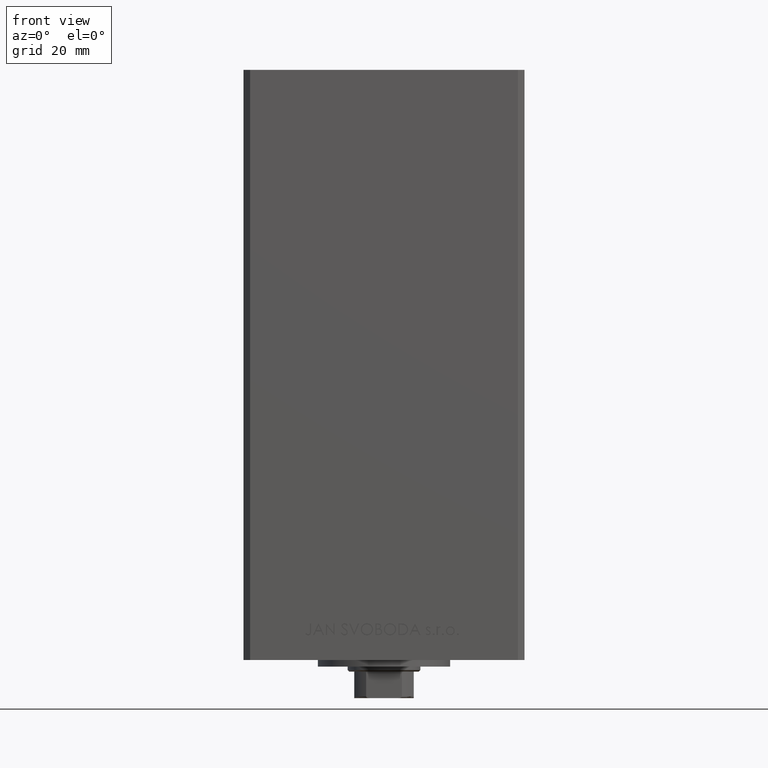
[diagram: clean part render]
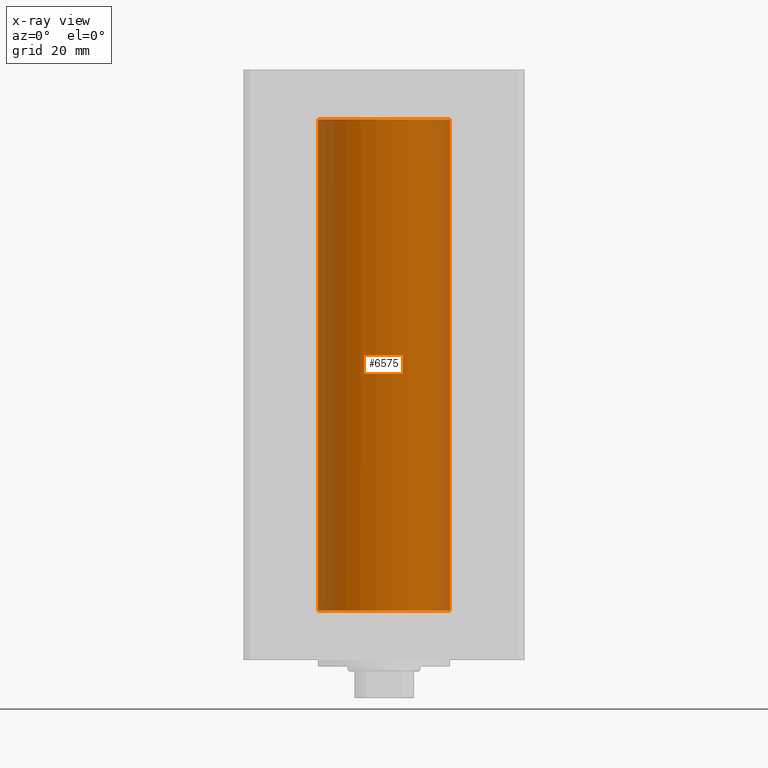
[diagram: x-ray — body ghosted, one internal face saturated and labeled with its STEP entity id]
A machine part, front view, then the same camera in x-ray: the body is ghosted and one INTERNAL B-rep face — a face not visible from any outside direction — is saturated and labeled: STEP entity #6575.
In plain terms, the highlighted cylindrical surface (partial cylindrical patch) has radius 20 mm, axis along (-0, -0, -1).
Its self-contained STEP definition (entity closure, byte-faithful):
#2074 = CARTESIAN_POINT ( 'NONE',  ( -20.00000000000000000, 0.000000000000000000, 148.5000000000000000 ) ) ;
#2365 = EDGE_CURVE ( 'NONE', #15562, #20331, #43583, .T. ) ;
#6068 = DIRECTION ( 'NONE',  ( 1.000000000000000000, 0.000000000000000000, 0.000000000000000000 ) ) ;
#6575 = ADVANCED_FACE ( 'NONE', ( #30785 ), #23600, .F. ) ;
#8982 = CARTESIAN_POINT ( 'NONE',  ( -20.00000000000000000, 0.000000000000000000, 148.5000000000000000 ) ) ;
#9148 = VERTEX_POINT ( 'NONE', #8982 ) ;
#12768 = CARTESIAN_POINT ( 'NONE',  ( 0.000000000000000000, 0.000000000000000000, 148.5000000000000000 ) ) ;
#14153 = AXIS2_PLACEMENT_3D ( 'NONE', #12768, #24138, #6068 ) ;
#14313 = ORIENTED_EDGE ( 'NONE', *, *, #40359, .T. ) ;
#15562 = VERTEX_POINT ( 'NONE', #17699 ) ;
#16539 = CARTESIAN_POINT ( 'NONE',  ( 20.00000000000000000, 2.449293598294706513E-15, 148.5000000000000000 ) ) ;
#17699 = CARTESIAN_POINT ( 'NONE',  ( -20.00000000000000000, 0.000000000000000000, 0.000000000000000000 ) ) ;
#18090 = DIRECTION ( 'NONE',  ( 1.000000000000000000, 0.000000000000000000, 0.000000000000000000 ) ) ;
#18827 = VECTOR ( 'NONE', #24580, 1000.000000000000000 ) ;
#20331 = VERTEX_POINT ( 'NONE', #31367 ) ;
#21796 = CARTESIAN_POINT ( 'NONE',  ( 0.000000000000000000, 0.000000000000000000, 0.000000000000000000 ) ) ;
#23600 = CYLINDRICAL_SURFACE ( 'NONE', #29892, 20.00000000000000000 ) ;
#23605 = CIRCLE ( 'NONE', #14153, 20.00000000000000000 ) ;
#24138 = DIRECTION ( 'NONE',  ( -0.000000000000000000, 0.000000000000000000, 1.000000000000000000 ) ) ;
#24340 = CARTESIAN_POINT ( 'NONE',  ( 0.000000000000000000, 0.000000000000000000, 148.5000000000000000 ) ) ;
#24580 = DIRECTION ( 'NONE',  ( -0.000000000000000000, -0.000000000000000000, -1.000000000000000000 ) ) ;
#27530 = VERTEX_POINT ( 'NONE', #16539 ) ;
#27556 = ORIENTED_EDGE ( 'NONE', *, *, #46926, .T. ) ;
#29892 = AXIS2_PLACEMENT_3D ( 'NONE', #24340, #34988, #38714 ) ;
#30033 = ORIENTED_EDGE ( 'NONE', *, *, #2365, .F. ) ;
#30785 = FACE_OUTER_BOUND ( 'NONE', #41489, .T. ) ;
#31367 = CARTESIAN_POINT ( 'NONE',  ( 20.00000000000000000, 2.449293598294706513E-15, 0.000000000000000000 ) ) ;
#32254 = LINE ( 'NONE', #2074, #18827 ) ;
#34871 = ORIENTED_EDGE ( 'NONE', *, *, #48480, .F. ) ;
#34988 = DIRECTION ( 'NONE',  ( -0.000000000000000000, -0.000000000000000000, -1.000000000000000000 ) ) ;
#35035 = LINE ( 'NONE', #45925, #36055 ) ;
#36055 = VECTOR ( 'NONE', #38761, 1000.000000000000000 ) ;
#38714 = DIRECTION ( 'NONE',  ( -1.000000000000000000, 0.000000000000000000, 0.000000000000000000 ) ) ;
#38761 = DIRECTION ( 'NONE',  ( -0.000000000000000000, -0.000000000000000000, -1.000000000000000000 ) ) ;
#39638 = AXIS2_PLACEMENT_3D ( 'NONE', #21796, #48517, #18090 ) ;
#40359 = EDGE_CURVE ( 'NONE', #27530, #20331, #35035, .T. ) ;
#41489 = EDGE_LOOP ( 'NONE', ( #27556, #14313, #30033, #34871 ) ) ;
#43583 = CIRCLE ( 'NONE', #39638, 20.00000000000000000 ) ;
#45925 = CARTESIAN_POINT ( 'NONE',  ( 20.00000000000000000, 2.449293598294706513E-15, 148.5000000000000000 ) ) ;
#46926 = EDGE_CURVE ( 'NONE', #9148, #27530, #23605, .T. ) ;
#48480 = EDGE_CURVE ( 'NONE', #9148, #15562, #32254, .T. ) ;
#48517 = DIRECTION ( 'NONE',  ( -0.000000000000000000, 0.000000000000000000, 1.000000000000000000 ) ) ;